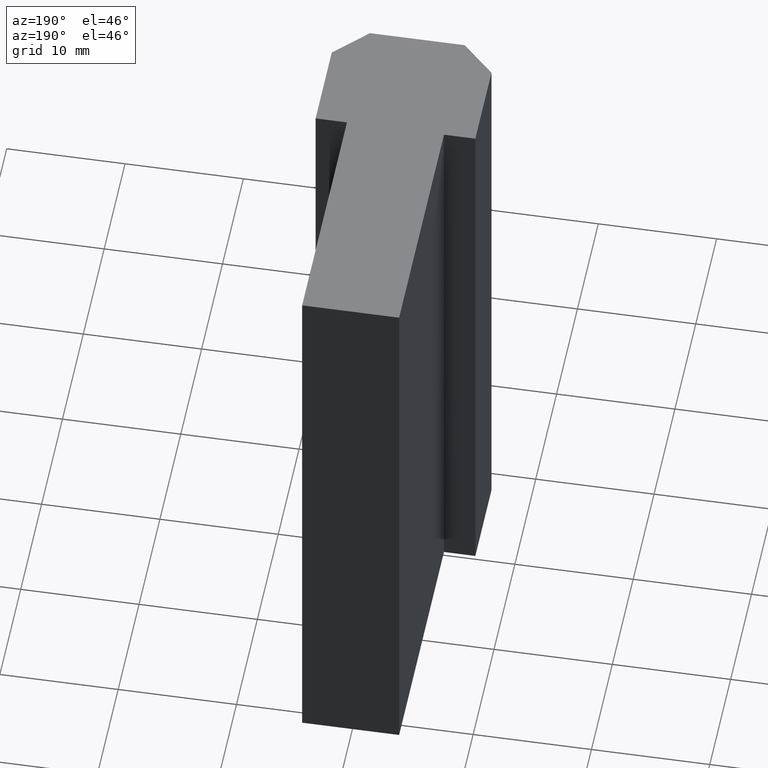
[diagram: clean part render]
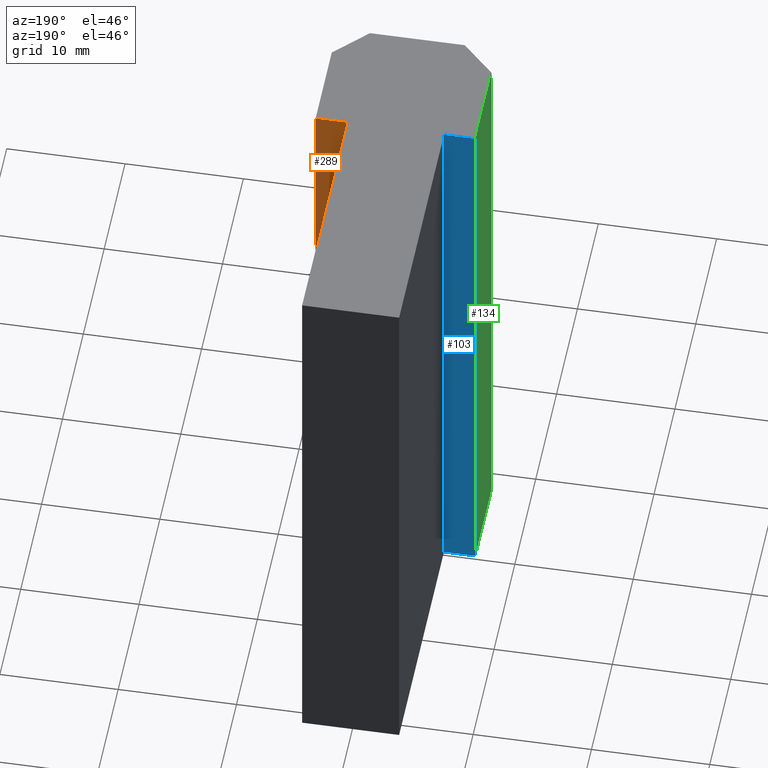
[diagram: same view with three faces highlighted in distinct colors, each labeled with its STEP entity id]
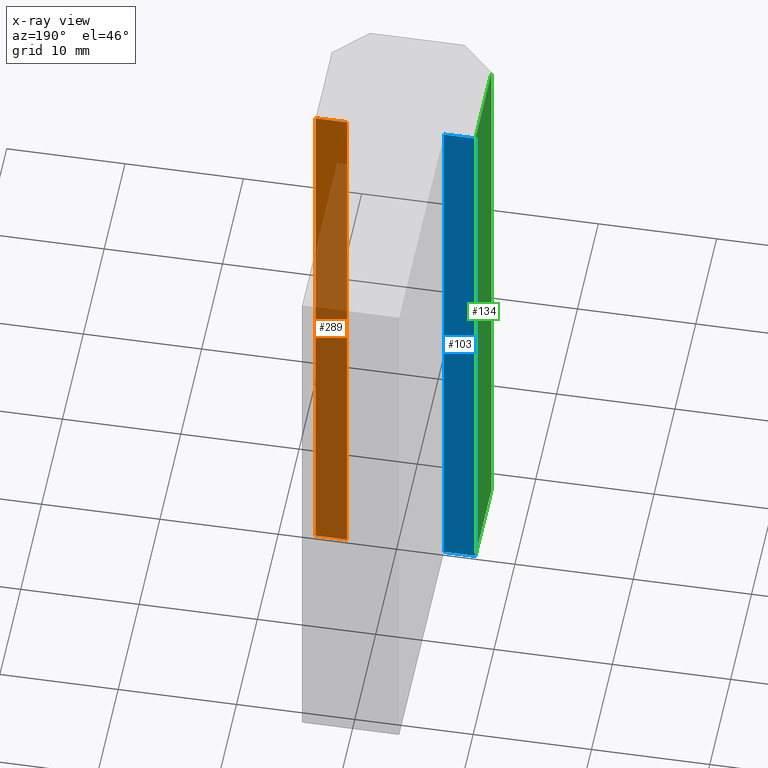
[diagram: x-ray of the same camera — body ghosted, the three highlighted faces saturated]
A machine part, auxiliary view with three faces highlighted in distinct colors.
The next image is the same camera in x-ray (body ghosted, the three faces saturated) — at least one of them is partly hidden behind the body in this view.
Their STEP definitions:

[orange] entity #289 — the highlighted planar face has unit normal (0, 1, 0).
#233=CARTESIAN_POINT('',(6.749999999972943,10.499999999958163,0.0));
#234=VERTEX_POINT('',#233);
#241=CARTESIAN_POINT('',(6.749999999972943,10.499999999958163,50.0));
#242=VERTEX_POINT('',#241);
#243=CARTESIAN_POINT('',(6.749999999972943,10.499999999958163,0.0));
#244=DIRECTION('',(0.0,0.0,1.0));
#245=VECTOR('',#244,50.0);
#246=LINE('',#243,#245);
#247=EDGE_CURVE('',#234,#242,#246,.T.);
#259=CARTESIAN_POINT('',(6.749999999972943,10.499999999958163,0.0));
#260=DIRECTION('',(0.0,1.0,0.0));
#261=DIRECTION('',(-1.0,0.0,0.0));
#262=AXIS2_PLACEMENT_3D('',#259,#260,#261);
#263=PLANE('',#262);
#264=CARTESIAN_POINT('',(4.099999999983538,10.499999999958163,0.0));
#265=VERTEX_POINT('',#264);
#266=CARTESIAN_POINT('',(6.749999999972955,10.499999999958163,0.0));
#267=DIRECTION('',(-1.0,0.0,0.0));
#268=VECTOR('',#267,2.649999999989417);
#269=LINE('',#266,#268);
#270=EDGE_CURVE('',#234,#265,#269,.T.);
#271=ORIENTED_EDGE('',*,*,#270,.T.);
#272=CARTESIAN_POINT('',(4.099999999983538,10.499999999958163,50.0));
#273=VERTEX_POINT('',#272);
#274=CARTESIAN_POINT('',(4.099999999983538,10.499999999958163,0.0));
#275=DIRECTION('',(0.0,0.0,1.0));
#276=VECTOR('',#275,50.0);
#277=LINE('',#274,#276);
#278=EDGE_CURVE('',#265,#273,#277,.T.);
#279=ORIENTED_EDGE('',*,*,#278,.T.);
#280=CARTESIAN_POINT('',(6.749999999972955,10.499999999958163,50.0));
#281=DIRECTION('',(-1.0,0.0,0.0));
#282=VECTOR('',#281,2.649999999989417);
#283=LINE('',#280,#282);
#284=EDGE_CURVE('',#242,#273,#283,.T.);
#285=ORIENTED_EDGE('',*,*,#284,.F.);
#286=ORIENTED_EDGE('',*,*,#247,.F.);
#287=EDGE_LOOP('',(#271,#279,#285,#286));
#288=FACE_OUTER_BOUND('',#287,.T.);
#289=ADVANCED_FACE('',(#288),#263,.T.);

[blue] entity #103 — the highlighted planar face has unit normal (0, 1, 0).
#47=CARTESIAN_POINT('',(-4.099999999983538,10.499999999958163,0.0));
#48=VERTEX_POINT('',#47);
#55=CARTESIAN_POINT('',(-4.099999999983538,10.499999999958163,50.0));
#56=VERTEX_POINT('',#55);
#57=CARTESIAN_POINT('',(-4.099999999983538,10.499999999958163,0.0));
#58=DIRECTION('',(0.0,0.0,1.0));
#59=VECTOR('',#58,50.0);
#60=LINE('',#57,#59);
#61=EDGE_CURVE('',#48,#56,#60,.T.);
#73=CARTESIAN_POINT('',(-4.099999999983538,10.499999999958163,0.0));
#74=DIRECTION('',(0.0,1.0,0.0));
#75=DIRECTION('',(-1.0,0.0,0.0));
#76=AXIS2_PLACEMENT_3D('',#73,#74,#75);
#77=PLANE('',#76);
#78=CARTESIAN_POINT('',(-6.749999999972943,10.499999999958163,0.0));
#79=VERTEX_POINT('',#78);
#80=CARTESIAN_POINT('',(-4.099999999983526,10.499999999958163,0.0));
#81=DIRECTION('',(-1.0,0.0,0.0));
#82=VECTOR('',#81,2.649999999989417);
#83=LINE('',#80,#82);
#84=EDGE_CURVE('',#48,#79,#83,.T.);
#85=ORIENTED_EDGE('',*,*,#84,.T.);
#86=CARTESIAN_POINT('',(-6.749999999972943,10.499999999958163,50.0));
#87=VERTEX_POINT('',#86);
#88=CARTESIAN_POINT('',(-6.749999999972943,10.499999999958163,0.0));
#89=DIRECTION('',(0.0,0.0,1.0));
#90=VECTOR('',#89,50.0);
#91=LINE('',#88,#90);
#92=EDGE_CURVE('',#79,#87,#91,.T.);
#93=ORIENTED_EDGE('',*,*,#92,.T.);
#94=CARTESIAN_POINT('',(-4.099999999983526,10.499999999958163,50.0));
#95=DIRECTION('',(-1.0,0.0,0.0));
#96=VECTOR('',#95,2.649999999989417);
#97=LINE('',#94,#96);
#98=EDGE_CURVE('',#56,#87,#97,.T.);
#99=ORIENTED_EDGE('',*,*,#98,.F.);
#100=ORIENTED_EDGE('',*,*,#61,.F.);
#101=EDGE_LOOP('',(#85,#93,#99,#100));
#102=FACE_OUTER_BOUND('',#101,.T.);
#103=ADVANCED_FACE('',(#102),#77,.T.);

[green] entity #134 — the highlighted planar face has unit normal (-1, 0, 0).
#78=CARTESIAN_POINT('',(-6.749999999972943,10.499999999958163,0.0));
#79=VERTEX_POINT('',#78);
#86=CARTESIAN_POINT('',(-6.749999999972943,10.499999999958163,50.0));
#87=VERTEX_POINT('',#86);
#88=CARTESIAN_POINT('',(-6.749999999972943,10.499999999958163,0.0));
#89=DIRECTION('',(0.0,0.0,1.0));
#90=VECTOR('',#89,50.0);
#91=LINE('',#88,#90);
#92=EDGE_CURVE('',#79,#87,#91,.T.);
#104=CARTESIAN_POINT('',(-6.749999999972943,10.499999999958163,0.0));
#105=DIRECTION('',(-1.0,0.0,0.0));
#106=DIRECTION('',(0.0,-1.0,0.0));
#107=AXIS2_PLACEMENT_3D('',#104,#105,#106);
#108=PLANE('',#107);
#109=CARTESIAN_POINT('',(-6.749999999972943,2.749999999989086,0.0));
#110=VERTEX_POINT('',#109);
#111=CARTESIAN_POINT('',(-6.749999999972943,10.499999999958085,0.0));
#112=DIRECTION('',(0.0,-1.0,0.0));
#113=VECTOR('',#112,7.749999999968999);
#114=LINE('',#111,#113);
#115=EDGE_CURVE('',#79,#110,#114,.T.);
#116=ORIENTED_EDGE('',*,*,#115,.T.);
#117=CARTESIAN_POINT('',(-6.749999999972943,2.749999999989086,50.0));
#118=VERTEX_POINT('',#117);
#119=CARTESIAN_POINT('',(-6.749999999972943,2.749999999989086,0.0));
#120=DIRECTION('',(0.0,0.0,1.0));
#121=VECTOR('',#120,50.0);
#122=LINE('',#119,#121);
#123=EDGE_CURVE('',#110,#118,#122,.T.);
#124=ORIENTED_EDGE('',*,*,#123,.T.);
#125=CARTESIAN_POINT('',(-6.749999999972943,10.499999999958085,50.0));
#126=DIRECTION('',(0.0,-1.0,0.0));
#127=VECTOR('',#126,7.749999999968999);
#128=LINE('',#125,#127);
#129=EDGE_CURVE('',#87,#118,#128,.T.);
#130=ORIENTED_EDGE('',*,*,#129,.F.);
#131=ORIENTED_EDGE('',*,*,#92,.F.);
#132=EDGE_LOOP('',(#116,#124,#130,#131));
#133=FACE_OUTER_BOUND('',#132,.T.);
#134=ADVANCED_FACE('',(#133),#108,.T.);